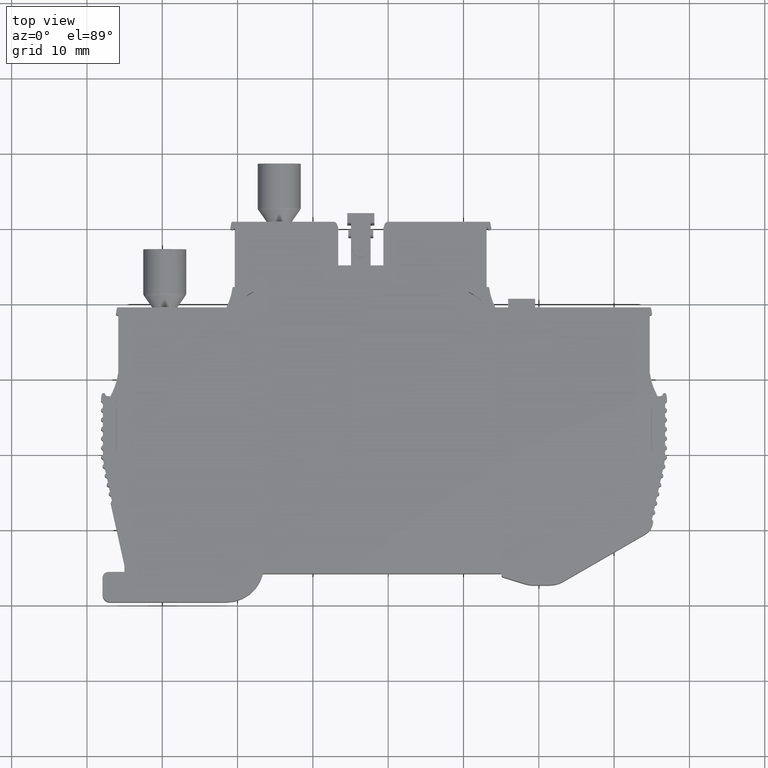
[diagram: clean part render]
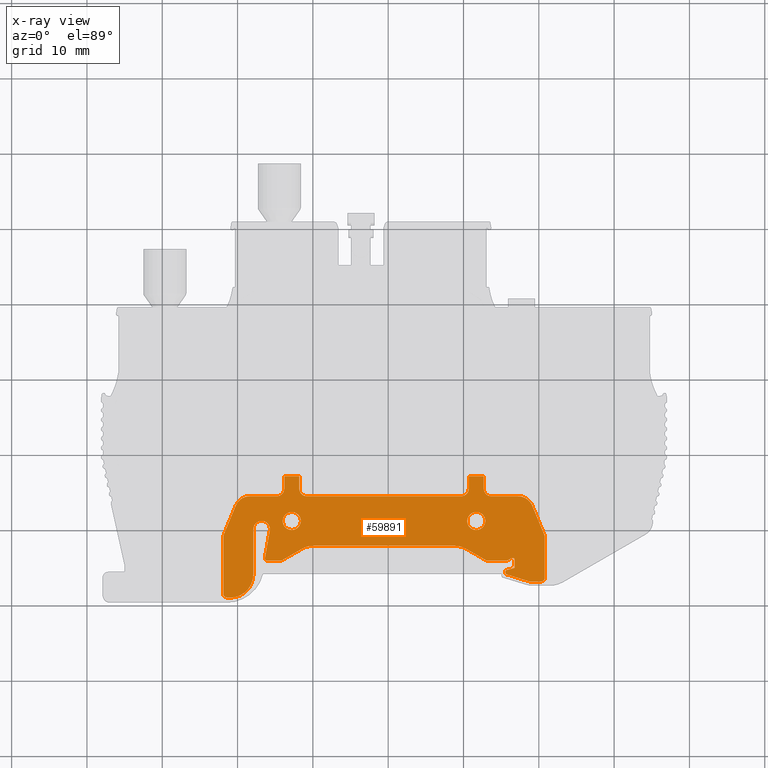
[diagram: x-ray — body ghosted, one internal face saturated and labeled with its STEP entity id]
A machine part, top view, then the same camera in x-ray: the body is ghosted and one INTERNAL B-rep face — a face not visible from any outside direction — is saturated and labeled: STEP entity #59891.
In plain terms, the highlighted planar face has unit normal (-0, 0, -1).
Its self-contained STEP definition (entity closure, byte-faithful):
#709 = ORIENTED_EDGE ( 'NONE', *, *, #13709, .F. ) ;
#711 = ORIENTED_EDGE ( 'NONE', *, *, #13625, .F. ) ;
#712 = ORIENTED_EDGE ( 'NONE', *, *, #13650, .F. ) ;
#713 = ORIENTED_EDGE ( 'NONE', *, *, #13680, .F. ) ;
#714 = ORIENTED_EDGE ( 'NONE', *, *, #13676, .F. ) ;
#715 = ORIENTED_EDGE ( 'NONE', *, *, #13633, .F. ) ;
#725 = ORIENTED_EDGE ( 'NONE', *, *, #13639, .F. ) ;
#726 = ORIENTED_EDGE ( 'NONE', *, *, #13699, .F. ) ;
#727 = ORIENTED_EDGE ( 'NONE', *, *, #13651, .F. ) ;
#729 = ORIENTED_EDGE ( 'NONE', *, *, #61433, .F. ) ;
#730 = ORIENTED_EDGE ( 'NONE', *, *, #13751, .T. ) ;
#731 = ORIENTED_EDGE ( 'NONE', *, *, #13652, .F. ) ;
#732 = ORIENTED_EDGE ( 'NONE', *, *, #13706, .F. ) ;
#733 = ORIENTED_EDGE ( 'NONE', *, *, #61579, .F. ) ;
#734 = ORIENTED_EDGE ( 'NONE', *, *, #13648, .F. ) ;
#735 = ORIENTED_EDGE ( 'NONE', *, *, #61650, .F. ) ;
#736 = ORIENTED_EDGE ( 'NONE', *, *, #13679, .F. ) ;
#737 = ORIENTED_EDGE ( 'NONE', *, *, #13711, .F. ) ;
#738 = ORIENTED_EDGE ( 'NONE', *, *, #13721, .F. ) ;
#739 = ORIENTED_EDGE ( 'NONE', *, *, #13623, .F. ) ;
#740 = ORIENTED_EDGE ( 'NONE', *, *, #13635, .F. ) ;
#741 = ORIENTED_EDGE ( 'NONE', *, *, #13747, .T. ) ;
#743 = ORIENTED_EDGE ( 'NONE', *, *, #13705, .F. ) ;
#745 = ORIENTED_EDGE ( 'NONE', *, *, #13720, .F. ) ;
#748 = ORIENTED_EDGE ( 'NONE', *, *, #13640, .F. ) ;
#752 = ORIENTED_EDGE ( 'NONE', *, *, #61642, .F. ) ;
#753 = ORIENTED_EDGE ( 'NONE', *, *, #61663, .F. ) ;
#755 = ORIENTED_EDGE ( 'NONE', *, *, #13628, .F. ) ;
#756 = ORIENTED_EDGE ( 'NONE', *, *, #13714, .T. ) ;
#757 = ORIENTED_EDGE ( 'NONE', *, *, #13735, .F. ) ;
#758 = ORIENTED_EDGE ( 'NONE', *, *, #61355, .T. ) ;
#759 = ORIENTED_EDGE ( 'NONE', *, *, #13767, .F. ) ;
#760 = ORIENTED_EDGE ( 'NONE', *, *, #13731, .F. ) ;
#761 = ORIENTED_EDGE ( 'NONE', *, *, #13669, .F. ) ;
#762 = ORIENTED_EDGE ( 'NONE', *, *, #13657, .F. ) ;
#765 = ORIENTED_EDGE ( 'NONE', *, *, #61623, .F. ) ;
#766 = ORIENTED_EDGE ( 'NONE', *, *, #13671, .F. ) ;
#768 = ORIENTED_EDGE ( 'NONE', *, *, #13618, .F. ) ;
#769 = ORIENTED_EDGE ( 'NONE', *, *, #13624, .F. ) ;
#789 = ORIENTED_EDGE ( 'NONE', *, *, #61597, .F. ) ;
#790 = ORIENTED_EDGE ( 'NONE', *, *, #61621, .F. ) ;
#794 = ORIENTED_EDGE ( 'NONE', *, *, #61386, .T. ) ;
#796 = ORIENTED_EDGE ( 'NONE', *, *, #13718, .F. ) ;
#803 = ORIENTED_EDGE ( 'NONE', *, *, #61639, .F. ) ;
#805 = ORIENTED_EDGE ( 'NONE', *, *, #61646, .F. ) ;
#808 = ORIENTED_EDGE ( 'NONE', *, *, #13673, .F. ) ;
#810 = ORIENTED_EDGE ( 'NONE', *, *, #13704, .F. ) ;
#811 = ORIENTED_EDGE ( 'NONE', *, *, #13707, .F. ) ;
#812 = ORIENTED_EDGE ( 'NONE', *, *, #13683, .F. ) ;
#824 = ORIENTED_EDGE ( 'NONE', *, *, #61589, .F. ) ;
#825 = ORIENTED_EDGE ( 'NONE', *, *, #61658, .F. ) ;
#827 = ORIENTED_EDGE ( 'NONE', *, *, #61653, .F. ) ;
#832 = ORIENTED_EDGE ( 'NONE', *, *, #13617, .F. ) ;
#4067 = EDGE_LOOP ( 'NONE', ( #765, #759, #789, #803, #753, #760, #757, #737, #738, #743, #811, #726, #745, #729, #709, #810, #732, #769, #768, #766, #748, #711, #755, #740, #731, #727, #739, #725, #714, #762, #712, #713, #832, #761, #734, #808, #736, #715, #733, #824, #735, #752, #805, #790, #827, #825, #796, #812, #756 ) ) ;
#4073 = EDGE_LOOP ( 'NONE', ( #758, #730 ) ) ;
#4093 = EDGE_LOOP ( 'NONE', ( #794, #741 ) ) ;
#8839 = VERTEX_POINT ( 'NONE', #49124 ) ;
#8887 = VERTEX_POINT ( 'NONE', #49132 ) ;
#8899 = VERTEX_POINT ( 'NONE', #49105 ) ;
#8907 = VERTEX_POINT ( 'NONE', #49134 ) ;
#8957 = VERTEX_POINT ( 'NONE', #49181 ) ;
#9041 = VERTEX_POINT ( 'NONE', #49153 ) ;
#9079 = VERTEX_POINT ( 'NONE', #49252 ) ;
#9107 = VERTEX_POINT ( 'NONE', #49241 ) ;
#9113 = VERTEX_POINT ( 'NONE', #49225 ) ;
#9115 = VERTEX_POINT ( 'NONE', #49268 ) ;
#9166 = VERTEX_POINT ( 'NONE', #49249 ) ;
#9212 = VERTEX_POINT ( 'NONE', #49284 ) ;
#9220 = VERTEX_POINT ( 'NONE', #49288 ) ;
#9222 = VERTEX_POINT ( 'NONE', #49291 ) ;
#9224 = VERTEX_POINT ( 'NONE', #49326 ) ;
#9250 = VERTEX_POINT ( 'NONE', #49304 ) ;
#9262 = VERTEX_POINT ( 'NONE', #49297 ) ;
#9268 = VERTEX_POINT ( 'NONE', #49328 ) ;
#9272 = VERTEX_POINT ( 'NONE', #49309 ) ;
#9277 = VERTEX_POINT ( 'NONE', #49311 ) ;
#9279 = VERTEX_POINT ( 'NONE', #49317 ) ;
#9286 = VERTEX_POINT ( 'NONE', #49306 ) ;
#9291 = VERTEX_POINT ( 'NONE', #49320 ) ;
#9293 = VERTEX_POINT ( 'NONE', #49300 ) ;
#9297 = VERTEX_POINT ( 'NONE', #49312 ) ;
#9299 = VERTEX_POINT ( 'NONE', #49313 ) ;
#9302 = VERTEX_POINT ( 'NONE', #49314 ) ;
#9304 = VERTEX_POINT ( 'NONE', #49276 ) ;
#9306 = VERTEX_POINT ( 'NONE', #49325 ) ;
#9312 = VERTEX_POINT ( 'NONE', #49324 ) ;
#9314 = VERTEX_POINT ( 'NONE', #49277 ) ;
#9316 = VERTEX_POINT ( 'NONE', #49281 ) ;
#9318 = VERTEX_POINT ( 'NONE', #49389 ) ;
#9320 = VERTEX_POINT ( 'NONE', #49398 ) ;
#9322 = VERTEX_POINT ( 'NONE', #49371 ) ;
#9324 = VERTEX_POINT ( 'NONE', #49342 ) ;
#9326 = VERTEX_POINT ( 'NONE', #49372 ) ;
#9334 = VERTEX_POINT ( 'NONE', #49393 ) ;
#9336 = VERTEX_POINT ( 'NONE', #49385 ) ;
#9354 = VERTEX_POINT ( 'NONE', #49351 ) ;
#9358 = VERTEX_POINT ( 'NONE', #49395 ) ;
#9370 = VERTEX_POINT ( 'NONE', #49364 ) ;
#9372 = VERTEX_POINT ( 'NONE', #49346 ) ;
#9388 = VERTEX_POINT ( 'NONE', #49347 ) ;
#9394 = VERTEX_POINT ( 'NONE', #49388 ) ;
#9396 = VERTEX_POINT ( 'NONE', #49381 ) ;
#9400 = VERTEX_POINT ( 'NONE', #49390 ) ;
#9420 = VERTEX_POINT ( 'NONE', #49338 ) ;
#9430 = VERTEX_POINT ( 'NONE', #49380 ) ;
#9438 = VERTEX_POINT ( 'NONE', #49382 ) ;
#9446 = VERTEX_POINT ( 'NONE', #49435 ) ;
#9454 = VERTEX_POINT ( 'NONE', #49436 ) ;
#9460 = VERTEX_POINT ( 'NONE', #49418 ) ;
#13617 = EDGE_CURVE ( 'NONE', #9279, #9212, #50139, .T. ) ;
#13618 = EDGE_CURVE ( 'NONE', #9396, #9438, #46110, .T. ) ;
#13623 = EDGE_CURVE ( 'NONE', #9107, #9262, #46084, .T. ) ;
#13624 = EDGE_CURVE ( 'NONE', #9438, #9394, #50111, .T. ) ;
#13625 = EDGE_CURVE ( 'NONE', #9372, #9358, #50102, .T. ) ;
#13628 = EDGE_CURVE ( 'NONE', #9314, #9372, #46085, .T. ) ;
#13633 = EDGE_CURVE ( 'NONE', #9291, #9299, #46133, .T. ) ;
#13635 = EDGE_CURVE ( 'NONE', #9312, #9314, #50157, .T. ) ;
#13639 = EDGE_CURVE ( 'NONE', #9306, #9107, #50162, .T. ) ;
#13640 = EDGE_CURVE ( 'NONE', #9358, #9224, #46197, .T. ) ;
#13648 = EDGE_CURVE ( 'NONE', #9286, #9222, #50199, .T. ) ;
#13650 = EDGE_CURVE ( 'NONE', #9304, #9115, #46184, .T. ) ;
#13651 = EDGE_CURVE ( 'NONE', #9262, #9322, #50224, .T. ) ;
#13652 = EDGE_CURVE ( 'NONE', #9322, #9312, #46192, .T. ) ;
#13657 = EDGE_CURVE ( 'NONE', #9115, #9113, #50217, .T. ) ;
#13669 = EDGE_CURVE ( 'NONE', #9222, #9279, #46175, .T. ) ;
#13671 = EDGE_CURVE ( 'NONE', #9224, #9396, #50269, .T. ) ;
#13673 = EDGE_CURVE ( 'NONE', #9316, #9286, #46187, .T. ) ;
#13676 = EDGE_CURVE ( 'NONE', #9113, #9306, #46185, .T. ) ;
#13679 = EDGE_CURVE ( 'NONE', #9299, #9316, #50324, .T. ) ;
#13680 = EDGE_CURVE ( 'NONE', #9212, #9304, #50321, .T. ) ;
#13683 = EDGE_CURVE ( 'NONE', #9336, #9354, #50289, .T. ) ;
#13699 = EDGE_CURVE ( 'NONE', #9430, #9400, #50345, .T. ) ;
#13704 = EDGE_CURVE ( 'NONE', #9460, #9388, #50375, .T. ) ;
#13705 = EDGE_CURVE ( 'NONE', #9454, #9277, #50391, .T. ) ;
#13706 = EDGE_CURVE ( 'NONE', #9394, #9460, #46272, .T. ) ;
#13707 = EDGE_CURVE ( 'NONE', #9400, #9454, #46250, .T. ) ;
#13709 = EDGE_CURVE ( 'NONE', #9388, #8907, #46265, .T. ) ;
#13711 = EDGE_CURVE ( 'NONE', #9370, #9420, #50394, .T. ) ;
#13714 = EDGE_CURVE ( 'NONE', #9336, #9220, #50408, .T. ) ;
#13718 = EDGE_CURVE ( 'NONE', #9354, #9293, #50453, .T. ) ;
#13720 = EDGE_CURVE ( 'NONE', #9079, #9430, #46226, .T. ) ;
#13721 = EDGE_CURVE ( 'NONE', #9277, #9370, #46233, .T. ) ;
#13731 = EDGE_CURVE ( 'NONE', #9446, #9166, #50494, .T. ) ;
#13735 = EDGE_CURVE ( 'NONE', #9420, #9446, #46219, .T. ) ;
#13747 = EDGE_CURVE ( 'NONE', #8957, #8899, #46317, .T. ) ;
#13751 = EDGE_CURVE ( 'NONE', #8839, #8887, #46334, .T. ) ;
#13767 = EDGE_CURVE ( 'NONE', #9324, #9250, #50548, .T. ) ;
#23040 = AXIS2_PLACEMENT_3D ( 'NONE', #31542, #31549, #31562 ) ;
#31493 = FACE_BOUND ( 'NONE', #4093, .T. ) ;
#31501 = FACE_BOUND ( 'NONE', #4073, .T. ) ;
#31504 = PLANE ( 'NONE',  #23040 ) ;
#31542 = CARTESIAN_POINT ( 'NONE',  ( 1936.942966163735000, 424.5003324329459800, 0.8750000000349100700 ) ) ;
#31549 = DIRECTION ( 'NONE',  ( -1.776356821935510000E-015, 5.619248332499656200E-012, -1.000000000000000000 ) ) ;
#31558 = FACE_OUTER_BOUND ( 'NONE', #4067, .T. ) ;
#31562 = DIRECTION ( 'NONE',  ( -3.060176890657050100E-012, -1.000000000000000000, -5.619248332499650500E-012 ) ) ;
#41388 = CARTESIAN_POINT ( 'NONE',  ( 1941.692966163739800, 420.9598604050940500, 0.8750000000150050000 ) ) ;
#41395 = DIRECTION ( 'NONE',  ( -1.776356821935510000E-015, 5.619248332499660200E-012, -1.000000000000000000 ) ) ;
#41406 = DIRECTION ( 'NONE',  ( 0.0000000000000000000, 1.000000000000000000, 5.619239159630387400E-012 ) ) ;
#41473 = DIRECTION ( 'NONE',  ( -1.776356821935510000E-015, 5.619248332499660200E-012, -1.000000000000000000 ) ) ;
#41500 = CARTESIAN_POINT ( 'NONE',  ( 1917.192966163739800, 420.9598604050940500, 0.8750000000150500700 ) ) ;
#41501 = DIRECTION ( 'NONE',  ( 0.0000000000000000000, 1.000000000000000000, 5.619239159630387400E-012 ) ) ;
#41621 = CIRCLE ( 'NONE', #41645, 1.199999999999978900 ) ;
#41632 = AXIS2_PLACEMENT_3D ( 'NONE', #41388, #41395, #41406 ) ;
#41634 = CIRCLE ( 'NONE', #41632, 1.199999999999978900 ) ;
#41645 = AXIS2_PLACEMENT_3D ( 'NONE', #41500, #41473, #41501 ) ;
#41675 = CIRCLE ( 'NONE', #41698, 3.083962780616844600 ) ;
#41698 = AXIS2_PLACEMENT_3D ( 'NONE', #42353, #42363, #42346 ) ;
#41827 = VECTOR ( 'NONE', #42784, 1000.000000000000000 ) ;
#41833 = CIRCLE ( 'NONE', #41834, 0.5000000000001114700 ) ;
#41834 = AXIS2_PLACEMENT_3D ( 'NONE', #42832, #42870, #42843 ) ;
#41843 = CIRCLE ( 'NONE', #41846, 1.000000000000000900 ) ;
#41846 = AXIS2_PLACEMENT_3D ( 'NONE', #42887, #42874, #42899 ) ;
#41892 = CIRCLE ( 'NONE', #41896, 1.000000000000000900 ) ;
#41896 = AXIS2_PLACEMENT_3D ( 'NONE', #43075, #43051, #43055 ) ;
#41898 = CIRCLE ( 'NONE', #41899, 1.000000000000000900 ) ;
#41899 = AXIS2_PLACEMENT_3D ( 'NONE', #43247, #43286, #43293 ) ;
#41907 = VECTOR ( 'NONE', #43306, 1000.000000000000000 ) ;
#41910 = CIRCLE ( 'NONE', #41918, 0.9999999999996678200 ) ;
#41917 = AXIS2_PLACEMENT_3D ( 'NONE', #42951, #42989, #42992 ) ;
#41918 = AXIS2_PLACEMENT_3D ( 'NONE', #43169, #43207, #43195 ) ;
#41925 = VECTOR ( 'NONE', #43283, 1000.000000000000000 ) ;
#41928 = VECTOR ( 'NONE', #43162, 1000.000000000000100 ) ;
#41937 = CIRCLE ( 'NONE', #41917, 1.999999999999835200 ) ;
#41939 = VECTOR ( 'NONE', #43197, 1000.000000000000000 ) ;
#41977 = VECTOR ( 'NONE', #43224, 1000.000000000000000 ) ;
#42346 = DIRECTION ( 'NONE',  ( -3.095990026788391200E-012, -1.000000000000000000, -2.961131086213806200E-012 ) ) ;
#42353 = CARTESIAN_POINT ( 'NONE',  ( 1909.009095599049900, 413.8608766244519800, 0.8750000000025900400 ) ) ;
#42363 = DIRECTION ( 'NONE',  ( -1.776356830050185100E-015, 2.961114267037270000E-012, -1.000000000000000000 ) ) ;
#42784 = DIRECTION ( 'NONE',  ( -1.000000000000000000, 2.906425021968365000E-012, 3.491481338098295200E-015 ) ) ;
#42789 = LINE ( 'NONE', #42802, #41827 ) ;
#42802 = CARTESIAN_POINT ( 'NONE',  ( 1948.848794024970200, 412.9233260166219600, 0.8750000000000000000 ) ) ;
#42832 = CARTESIAN_POINT ( 'NONE',  ( 1950.292969024719900, 413.4233260166179800, 0.8750000000015549800 ) ) ;
#42843 = DIRECTION ( 'NONE',  ( -3.108624468949745200E-012, -1.000000000000000000, -2.961172973491749700E-012 ) ) ;
#42870 = DIRECTION ( 'NONE',  ( -1.776356830050185100E-015, 2.961114267037270000E-012, -1.000000000000000000 ) ) ;
#42874 = DIRECTION ( 'NONE',  ( 1.776356830050185100E-015, -2.961114267037270000E-012, 1.000000000000000000 ) ) ;
#42887 = CARTESIAN_POINT ( 'NONE',  ( 1919.192966163739800, 425.2503324330000400, 0.8750000000365300000 ) ) ;
#42899 = DIRECTION ( 'NONE',  ( -3.108624468950435500E-012, -1.000000000000000000, -2.961064553275158300E-012 ) ) ;
#42951 = CARTESIAN_POINT ( 'NONE',  ( 1947.271087312830100, 422.2503324329130100, 0.8750000000273250300 ) ) ;
#42989 = DIRECTION ( 'NONE',  ( -1.776356830050185100E-015, 2.961114267037270000E-012, -1.000000000000000000 ) ) ;
#42992 = DIRECTION ( 'NONE',  ( -3.108624468950694400E-012, -1.000000000000000000, -2.961118763384029400E-012 ) ) ;
#43051 = DIRECTION ( 'NONE',  ( 1.776356830050185100E-015, -2.961114267037270000E-012, 1.000000000000000000 ) ) ;
#43055 = DIRECTION ( 'NONE',  ( -3.108624468950435500E-012, -1.000000000000000000, -2.961064553275158300E-012 ) ) ;
#43075 = CARTESIAN_POINT ( 'NONE',  ( 1939.692966163739800, 425.2503324329370000, 0.8750000000364550600 ) ) ;
#43137 = LINE ( 'NONE', #43210, #41939 ) ;
#43156 = CARTESIAN_POINT ( 'NONE',  ( 1950.716848557249900, 419.1577807634000100, 0.8750000000184300400 ) ) ;
#43162 = DIRECTION ( 'NONE',  ( 0.3826834323621278200, -0.9238795325125136500, -2.689788538315124200E-012 ) ) ;
#43164 = LINE ( 'NONE', #43166, #41907 ) ;
#43166 = CARTESIAN_POINT ( 'NONE',  ( 1950.792969024720200, 413.4233260166159900, 0.8750000000015549800 ) ) ;
#43169 = CARTESIAN_POINT ( 'NONE',  ( 1949.792969024739900, 418.7750973310379500, 0.8750000000173250300 ) ) ;
#43179 = LINE ( 'NONE', #43156, #41928 ) ;
#43195 = DIRECTION ( 'NONE',  ( -3.108624468951471100E-012, -1.000000000000000000, -2.961064553276144600E-012 ) ) ;
#43197 = DIRECTION ( 'NONE',  ( -3.052770306568789800E-012, -1.000000000000000000, -2.967515460675545000E-012 ) ) ;
#43207 = DIRECTION ( 'NONE',  ( -1.776356830050185100E-015, 2.961114267037270000E-012, -1.000000000000000000 ) ) ;
#43210 = CARTESIAN_POINT ( 'NONE',  ( 1918.192966163740000, 425.7187598363250300, 0.8750000000378650400 ) ) ;
#43224 = DIRECTION ( 'NONE',  ( 1.000000000000000000, -3.060176890657050100E-012, -6.123233966887679000E-017 ) ) ;
#43247 = CARTESIAN_POINT ( 'NONE',  ( 1943.692966163739800, 425.2503324329239800, 0.8750000000364400700 ) ) ;
#43251 = LINE ( 'NONE', #43264, #41977 ) ;
#43264 = CARTESIAN_POINT ( 'NONE',  ( 1859.263814779029900, 426.9186980629650100, 0.8750000000465100200 ) ) ;
#43272 = LINE ( 'NONE', #43281, #41925 ) ;
#43281 = CARTESIAN_POINT ( 'NONE',  ( 1947.271087312835100, 424.2503324329130100, 0.8750000000333200100 ) ) ;
#43283 = DIRECTION ( 'NONE',  ( 1.000000000000000000, -3.215317392943340200E-012, -3.491481339014940200E-015 ) ) ;
#43286 = DIRECTION ( 'NONE',  ( 1.776356830050185100E-015, -2.961114267037270000E-012, 1.000000000000000000 ) ) ;
#43293 = DIRECTION ( 'NONE',  ( -3.108624468950435500E-012, -1.000000000000000000, -2.961064553275158300E-012 ) ) ;
#43306 = DIRECTION ( 'NONE',  ( -3.101666818361324900E-012, -1.000000000000000000, -2.967515460675545000E-012 ) ) ;
#46084 = CIRCLE ( 'NONE', #46118, 0.5000000000000559600 ) ;
#46085 = CIRCLE ( 'NONE', #46120, 2.999999999999891600 ) ;
#46088 = VECTOR ( 'NONE', #50113, 999.9999999999998900 ) ;
#46102 = AXIS2_PLACEMENT_3D ( 'NONE', #50140, #50107, #50120 ) ;
#46110 = CIRCLE ( 'NONE', #46102, 0.3000000000000779800 ) ;
#46118 = AXIS2_PLACEMENT_3D ( 'NONE', #50118, #50132, #50138 ) ;
#46120 = AXIS2_PLACEMENT_3D ( 'NONE', #50170, #50146, #50147 ) ;
#46121 = VECTOR ( 'NONE', #50101, 1000.000000000000100 ) ;
#46128 = VECTOR ( 'NONE', #50174, 1000.000000000000000 ) ;
#46133 = CIRCLE ( 'NONE', #46134, 0.5000000000000559600 ) ;
#46134 = AXIS2_PLACEMENT_3D ( 'NONE', #50176, #50187, #50148 ) ;
#46142 = VECTOR ( 'NONE', #50126, 1000.000000000000100 ) ;
#46148 = AXIS2_PLACEMENT_3D ( 'NONE', #50311, #50307, #50312 ) ;
#46152 = VECTOR ( 'NONE', #50291, 1000.000000000000000 ) ;
#46163 = AXIS2_PLACEMENT_3D ( 'NONE', #50206, #50209, #50202 ) ;
#46165 = VECTOR ( 'NONE', #50153, 1000.000000000000000 ) ;
#46172 = VECTOR ( 'NONE', #50316, 1000.000000000000000 ) ;
#46175 = CIRCLE ( 'NONE', #46186, 0.2500000000000279800 ) ;
#46184 = CIRCLE ( 'NONE', #46163, 0.2999999999999114500 ) ;
#46185 = CIRCLE ( 'NONE', #46148, 0.2999999999997449200 ) ;
#46186 = AXIS2_PLACEMENT_3D ( 'NONE', #50270, #50239, #50240 ) ;
#46187 = CIRCLE ( 'NONE', #46190, 0.2500000000003055300 ) ;
#46188 = VECTOR ( 'NONE', #50253, 1000.000000000000000 ) ;
#46189 = AXIS2_PLACEMENT_3D ( 'NONE', #50211, #50196, #50228 ) ;
#46190 = AXIS2_PLACEMENT_3D ( 'NONE', #50309, #50306, #50319 ) ;
#46191 = VECTOR ( 'NONE', #50305, 1000.000000000000000 ) ;
#46192 = CIRCLE ( 'NONE', #46189, 3.000000000001279400 ) ;
#46194 = VECTOR ( 'NONE', #50317, 1000.000000000000000 ) ;
#46197 = CIRCLE ( 'NONE', #46201, 0.5000000000000559600 ) ;
#46200 = VECTOR ( 'NONE', #50212, 1000.000000000000000 ) ;
#46201 = AXIS2_PLACEMENT_3D ( 'NONE', #50165, #50166, #50177 ) ;
#46204 = VECTOR ( 'NONE', #50194, 1000.000000000000200 ) ;
#46209 = AXIS2_PLACEMENT_3D ( 'NONE', #50413, #50404, #50380 ) ;
#46210 = VECTOR ( 'NONE', #50378, 1000.000000000000100 ) ;
#46213 = AXIS2_PLACEMENT_3D ( 'NONE', #50443, #50436, #50425 ) ;
#46216 = VECTOR ( 'NONE', #50498, 1000.000000000000000 ) ;
#46219 = CIRCLE ( 'NONE', #46305, 1.000000000000000900 ) ;
#46221 = VECTOR ( 'NONE', #50403, 1000.000000000000000 ) ;
#46225 = AXIS2_PLACEMENT_3D ( 'NONE', #50422, #50441, #50448 ) ;
#46226 = CIRCLE ( 'NONE', #46225, 0.4999999999894533300 ) ;
#46233 = CIRCLE ( 'NONE', #46213, 1.999999999999724200 ) ;
#46235 = AXIS2_PLACEMENT_3D ( 'NONE', #50389, #50390, #50406 ) ;
#46237 = VECTOR ( 'NONE', #50452, 1000.000000000000000 ) ;
#46247 = VECTOR ( 'NONE', #50374, 1000.000000000000000 ) ;
#46250 = CIRCLE ( 'NONE', #46255, 1.000000000000111900 ) ;
#46255 = AXIS2_PLACEMENT_3D ( 'NONE', #50387, #50379, #50372 ) ;
#46257 = VECTOR ( 'NONE', #50434, 1000.000000000000000 ) ;
#46259 = VECTOR ( 'NONE', #50386, 1000.000000000000100 ) ;
#46265 = CIRCLE ( 'NONE', #46235, 3.083962780616844600 ) ;
#46272 = CIRCLE ( 'NONE', #46209, 1.099999999999767800 ) ;
#46281 = VECTOR ( 'NONE', #50576, 1000.000000000000000 ) ;
#46298 = AXIS2_PLACEMENT_3D ( 'NONE', #50535, #50536, #50511 ) ;
#46305 = AXIS2_PLACEMENT_3D ( 'NONE', #50484, #50495, #50485 ) ;
#46312 = AXIS2_PLACEMENT_3D ( 'NONE', #50530, #50520, #50531 ) ;
#46317 = CIRCLE ( 'NONE', #46312, 1.199999999999978900 ) ;
#46334 = CIRCLE ( 'NONE', #46298, 1.199999999999978900 ) ;
#49105 = CARTESIAN_POINT ( 'NONE',  ( 1917.192966163739800, 422.1598604050941500, 0.8750000000217930100 ) ) ;
#49124 = CARTESIAN_POINT ( 'NONE',  ( 1941.692966163739800, 419.7598604050942300, 0.8750000000082645000 ) ) ;
#49132 = CARTESIAN_POINT ( 'NONE',  ( 1941.692966163739800, 422.1598604050941500, 0.8750000000217506000 ) ) ;
#49134 = CARTESIAN_POINT ( 'NONE',  ( 1909.009095599040400, 410.7769138438351300, 0.8749999999934580100 ) ) ;
#49153 = CARTESIAN_POINT ( 'NONE',  ( 1918.192966163740000, 426.9186980627849800, 0.8750000000465250100 ) ) ;
#49181 = CARTESIAN_POINT ( 'NONE',  ( 1917.192966163739800, 419.7598604050942300, 0.8750000000083068000 ) ) ;
#49225 = CARTESIAN_POINT ( 'NONE',  ( 1945.841335990649900, 415.7249023393900400, 0.8750000000082349700 ) ) ;
#49241 = CARTESIAN_POINT ( 'NONE',  ( 1943.217251896170200, 415.6847127063820200, 0.8750000000082400800 ) ) ;
#49249 = CARTESIAN_POINT ( 'NONE',  ( 1916.192966163740000, 426.9186980627909500, 0.8750000000465301100 ) ) ;
#49252 = CARTESIAN_POINT ( 'NONE',  ( 1908.512448016935000, 410.8171671095009900, 0.8749999999937100300 ) ) ;
#49268 = CARTESIAN_POINT ( 'NONE',  ( 1946.342973780780100, 416.0145108087420500, 0.8750000000091200400 ) ) ;
#49276 = CARTESIAN_POINT ( 'NONE',  ( 1946.792969024730200, 415.7547004417570000, 0.8750000000084550100 ) ) ;
#49277 = CARTESIAN_POINT ( 'NONE',  ( 1920.044048645939900, 417.6693883773119800, 0.8750000000138750100 ) ) ;
#49281 = CARTESIAN_POINT ( 'NONE',  ( 1945.724568208800100, 413.8688798008090000, 0.8750000000026850700 ) ) ;
#49284 = CARTESIAN_POINT ( 'NONE',  ( 1946.792969024725200, 414.7347255809740400, 0.8750000000053450600 ) ) ;
#49288 = CARTESIAN_POINT ( 'NONE',  ( 1940.692966163740000, 425.2503324329340400, 0.8750000000364500700 ) ) ;
#49291 = CARTESIAN_POINT ( 'NONE',  ( 1945.548630798404900, 414.2094623273100100, 0.8750000000037950800 ) ) ;
#49297 = CARTESIAN_POINT ( 'NONE',  ( 1942.967250554975000, 415.7517007788320000, 0.8750000000084650100 ) ) ;
#49300 = CARTESIAN_POINT ( 'NONE',  ( 1942.692966163740000, 425.2503324329270500, 0.8750000000364450700 ) ) ;
#49304 = CARTESIAN_POINT ( 'NONE',  ( 1939.692966163735000, 424.2503324329370000, 0.8750000000333449900 ) ) ;
#49306 = CARTESIAN_POINT ( 'NONE',  ( 1945.548630798404900, 414.1076573810410100, 0.8750000000035699200 ) ) ;
#49309 = CARTESIAN_POINT ( 'NONE',  ( 1950.292969024719900, 412.9233260166179800, 0.8750000000000000000 ) ) ;
#49311 = CARTESIAN_POINT ( 'NONE',  ( 1909.767085949600000, 423.0156992977590000, 0.8750000000299000800 ) ) ;
#49312 = CARTESIAN_POINT ( 'NONE',  ( 1949.118846377849900, 423.0156992976370700, 0.8750000000297600800 ) ) ;
#49313 = CARTESIAN_POINT ( 'NONE',  ( 1948.700668845765000, 412.9457708561589600, 0.8750000000000000000 ) ) ;
#49314 = CARTESIAN_POINT ( 'NONE',  ( 1950.792969024735200, 418.7750973310349400, 0.8750000000173200300 ) ) ;
#49317 = CARTESIAN_POINT ( 'NONE',  ( 1945.733923466380000, 414.4509430950370200, 0.8750000000044599900 ) ) ;
#49320 = CARTESIAN_POINT ( 'NONE',  ( 1948.848794024970200, 412.9233260166219600, 0.8750000000000000000 ) ) ;
#49324 = CARTESIAN_POINT ( 'NONE',  ( 1938.841889403525100, 417.6693883772559800, 0.8750000000140300000 ) ) ;
#49325 = CARTESIAN_POINT ( 'NONE',  ( 1945.691340746700000, 415.6847127063740000, 0.8750000000082349700 ) ) ;
#49326 = CARTESIAN_POINT ( 'NONE',  ( 1915.668686153285100, 415.6847127064660300, 0.8750000000081200600 ) ) ;
#49328 = CARTESIAN_POINT ( 'NONE',  ( 1947.271087312835100, 424.2503324329130100, 0.8750000000333200100 ) ) ;
#49338 = CARTESIAN_POINT ( 'NONE',  ( 1915.192966163735000, 424.2503324330120300, 0.8750000000334349200 ) ) ;
#49342 = CARTESIAN_POINT ( 'NONE',  ( 1919.192966163735000, 424.2503324330000400, 0.8750000000334200400 ) ) ;
#49346 = CARTESIAN_POINT ( 'NONE',  ( 1918.544040598769900, 417.2674599426200100, 0.8750000000129950500 ) ) ;
#49347 = CARTESIAN_POINT ( 'NONE',  ( 1912.092966163699900, 413.8847255810810000, 0.8750000000027999800 ) ) ;
#49351 = CARTESIAN_POINT ( 'NONE',  ( 1942.692966163740000, 426.9186980627100100, 0.8750000000464349700 ) ) ;
#49364 = CARTESIAN_POINT ( 'NONE',  ( 1911.614845014625000, 424.2503324330230000, 0.8750000000334450200 ) ) ;
#49371 = CARTESIAN_POINT ( 'NONE',  ( 1940.341897450689900, 417.2674599425529900, 0.8750000000129150000 ) ) ;
#49372 = CARTESIAN_POINT ( 'NONE',  ( 1918.192966163740000, 425.2503324330030500, 0.8750000000365300000 ) ) ;
#49380 = CARTESIAN_POINT ( 'NONE',  ( 1908.092969024714900, 411.3106408851829800, 0.8749999999952650100 ) ) ;
#49381 = CARTESIAN_POINT ( 'NONE',  ( 1913.928657734135000, 415.6847127064720000, 0.8750000000081250600 ) ) ;
#49382 = CARTESIAN_POINT ( 'NONE',  ( 1913.633215408229900, 416.0368071597729900, 0.8750000000090150100 ) ) ;
#49385 = CARTESIAN_POINT ( 'NONE',  ( 1940.692966163740000, 426.9186980627159800, 0.8750000000464450700 ) ) ;
#49388 = CARTESIAN_POINT ( 'NONE',  ( 1914.276257553055100, 419.6836803848889900, 0.8750000000198899800 ) ) ;
#49389 = CARTESIAN_POINT ( 'NONE',  ( 1950.716848557249900, 419.1577807634000100, 0.8750000000184300400 ) ) ;
#49390 = CARTESIAN_POINT ( 'NONE',  ( 1908.092969024735100, 418.7751111454159600, 0.8750000000172499800 ) ) ;
#49393 = CARTESIAN_POINT ( 'NONE',  ( 1950.792969024720200, 413.4233260166159900, 0.8750000000015549800 ) ) ;
#49395 = CARTESIAN_POINT ( 'NONE',  ( 1915.918687494480100, 415.7517007789149900, 0.8750000000083400000 ) ) ;
#49398 = CARTESIAN_POINT ( 'NONE',  ( 1943.692966163735000, 424.2503324329239800, 0.8750000000333300100 ) ) ;
#49418 = CARTESIAN_POINT ( 'NONE',  ( 1912.092969024739900, 419.8746933803290100, 0.8750000000205651100 ) ) ;
#49435 = CARTESIAN_POINT ( 'NONE',  ( 1916.192966163740000, 425.2503324330090200, 0.8750000000365399900 ) ) ;
#49436 = CARTESIAN_POINT ( 'NONE',  ( 1908.169089492224900, 419.1577945777809800, 0.8750000000183599800 ) ) ;
#50100 = CARTESIAN_POINT ( 'NONE',  ( 1914.276257553055100, 419.6836803848889900, 0.8750000000198899800 ) ) ;
#50101 = DIRECTION ( 'NONE',  ( 0.1736481776697454700, 0.9848077530117116400, 2.921825943485178800E-012 ) ) ;
#50102 = LINE ( 'NONE', #50133, #46088 ) ;
#50104 = CARTESIAN_POINT ( 'NONE',  ( 1946.792969024725200, 414.7347255809740400, 0.8750000000053450600 ) ) ;
#50107 = DIRECTION ( 'NONE',  ( -1.776356830050185100E-015, 2.961114267037270000E-012, -1.000000000000000000 ) ) ;
#50111 = LINE ( 'NONE', #50100, #46121 ) ;
#50113 = DIRECTION ( 'NONE',  ( -0.8660238551023851100, -0.5000026823864079900, -1.480741984239946000E-012 ) ) ;
#50118 = CARTESIAN_POINT ( 'NONE',  ( 1943.217251896170200, 416.1847127063820200, 0.8750000000095750100 ) ) ;
#50120 = DIRECTION ( 'NONE',  ( -2.960594732332981100E-012, -1.000000000000000000, -2.960956133057142800E-012 ) ) ;
#50126 = DIRECTION ( 'NONE',  ( 0.9659230709110930800, 0.2588293280941775800, 7.647075304279441000E-013 ) ) ;
#50132 = DIRECTION ( 'NONE',  ( -1.776356830050185100E-015, 2.961114267037270000E-012, -1.000000000000000000 ) ) ;
#50133 = CARTESIAN_POINT ( 'NONE',  ( 1915.918687494480100, 415.7517007789149900, 0.8750000000083400000 ) ) ;
#50138 = DIRECTION ( 'NONE',  ( -3.108624468950090600E-012, -1.000000000000000000, -2.961172973492078500E-012 ) ) ;
#50139 = LINE ( 'NONE', #50104, #46142 ) ;
#50140 = CARTESIAN_POINT ( 'NONE',  ( 1913.928657734135000, 415.9847127064719500, 0.8750000000090100100 ) ) ;
#50146 = DIRECTION ( 'NONE',  ( 1.776356830050185100E-015, -2.961114267037270000E-012, 1.000000000000000000 ) ) ;
#50147 = DIRECTION ( 'NONE',  ( -3.034609600642204300E-012, -1.000000000000000000, -2.961100693347684200E-012 ) ) ;
#50148 = DIRECTION ( 'NONE',  ( -3.108624468950090600E-012, -1.000000000000000000, -2.961172973492078500E-012 ) ) ;
#50153 = DIRECTION ( 'NONE',  ( -1.000000000000000000, 3.015302874738534900E-012, 3.491481338421395300E-015 ) ) ;
#50157 = LINE ( 'NONE', #50161, #46128 ) ;
#50161 = CARTESIAN_POINT ( 'NONE',  ( 1920.044048645939900, 417.6693883773119800, 0.8750000000138750100 ) ) ;
#50162 = LINE ( 'NONE', #50163, #46165 ) ;
#50163 = CARTESIAN_POINT ( 'NONE',  ( 1943.217251896170200, 415.6847127063820200, 0.8750000000082400800 ) ) ;
#50165 = CARTESIAN_POINT ( 'NONE',  ( 1915.668686153285100, 416.1847127064660300, 0.8750000000094500000 ) ) ;
#50166 = DIRECTION ( 'NONE',  ( -1.776356830050185100E-015, 2.961114267037270000E-012, -1.000000000000000000 ) ) ;
#50170 = CARTESIAN_POINT ( 'NONE',  ( 1920.044048645929900, 414.6693883773120300, 0.8750000000052150500 ) ) ;
#50174 = DIRECTION ( 'NONE',  ( -1.000000000000000000, 3.012927930994425000E-012, -8.320758577248530700E-015 ) ) ;
#50176 = CARTESIAN_POINT ( 'NONE',  ( 1948.848794024970200, 413.4233260166219600, 0.8750000000015599700 ) ) ;
#50177 = DIRECTION ( 'NONE',  ( -3.108624468950090600E-012, -1.000000000000000000, -2.961172973492078500E-012 ) ) ;
#50187 = DIRECTION ( 'NONE',  ( -1.776356830050185100E-015, 2.961114267037270000E-012, -1.000000000000000000 ) ) ;
#50194 = DIRECTION ( 'NONE',  ( -0.8660238550993066800, 0.5000026823917397300, 1.486789396497695300E-012 ) ) ;
#50196 = DIRECTION ( 'NONE',  ( 1.776356830050185100E-015, -2.961114267037270000E-012, 1.000000000000000000 ) ) ;
#50199 = LINE ( 'NONE', #50204, #46200 ) ;
#50202 = DIRECTION ( 'NONE',  ( -2.960594732334624500E-012, -1.000000000000000000, -2.960956133058786600E-012 ) ) ;
#50204 = CARTESIAN_POINT ( 'NONE',  ( 1945.548630798404900, 414.2094623273100100, 0.8750000000037950800 ) ) ;
#50206 = CARTESIAN_POINT ( 'NONE',  ( 1946.492969024730000, 415.7547004417580200, 0.8750000000084550100 ) ) ;
#50209 = DIRECTION ( 'NONE',  ( 1.776356830050185100E-015, -2.961114267037270000E-012, 1.000000000000000000 ) ) ;
#50211 = CARTESIAN_POINT ( 'NONE',  ( 1938.841889403515100, 414.6693883772550200, 0.8750000000051499900 ) ) ;
#50212 = DIRECTION ( 'NONE',  ( 5.241255640397440100E-012, 1.000000000000000000, 2.967515460675540100E-012 ) ) ;
#50217 = LINE ( 'NONE', #50230, #46188 ) ;
#50220 = CARTESIAN_POINT ( 'NONE',  ( 1940.341897450689900, 417.2674599425529900, 0.8750000000129150000 ) ) ;
#50224 = LINE ( 'NONE', #50220, #46204 ) ;
#50228 = DIRECTION ( 'NONE',  ( -3.034609600640800300E-012, -1.000000000000000000, -2.961100693346314600E-012 ) ) ;
#50230 = CARTESIAN_POINT ( 'NONE',  ( 1945.841335990649900, 415.7249023393900400, 0.8750000000082349700 ) ) ;
#50239 = DIRECTION ( 'NONE',  ( -1.776356830050185100E-015, 2.961114267037270000E-012, -1.000000000000000000 ) ) ;
#50240 = DIRECTION ( 'NONE',  ( -2.664535259100077600E-012, -1.000000000000000000, -2.961172973492078500E-012 ) ) ;
#50253 = DIRECTION ( 'NONE',  ( -0.8660345566149692000, -0.4999841464973801600, -1.480686941338548300E-012 ) ) ;
#50269 = LINE ( 'NONE', #50296, #46191 ) ;
#50270 = CARTESIAN_POINT ( 'NONE',  ( 1945.798630798404900, 414.2094623273089800, 0.8750000000037950800 ) ) ;
#50289 = LINE ( 'NONE', #50290, #46152 ) ;
#50290 = CARTESIAN_POINT ( 'NONE',  ( 1883.763814779029900, 426.9186980628900300, 0.8750000000464199800 ) ) ;
#50291 = DIRECTION ( 'NONE',  ( 1.000000000000000000, -3.060176890657050100E-012, -6.123233966887679000E-017 ) ) ;
#50296 = CARTESIAN_POINT ( 'NONE',  ( 1913.928657734135000, 415.6847127064720000, 0.8750000000081250600 ) ) ;
#50305 = DIRECTION ( 'NONE',  ( -1.000000000000000000, 3.123981769497315100E-012, 3.491481338743900200E-015 ) ) ;
#50306 = DIRECTION ( 'NONE',  ( -1.776356830050185100E-015, 2.961114267037270000E-012, -1.000000000000000000 ) ) ;
#50307 = DIRECTION ( 'NONE',  ( -1.776356830050185100E-015, 2.961114267037270000E-012, -1.000000000000000000 ) ) ;
#50309 = CARTESIAN_POINT ( 'NONE',  ( 1945.798630798404900, 414.1076573810410100, 0.8750000000035699200 ) ) ;
#50311 = CARTESIAN_POINT ( 'NONE',  ( 1945.691340746700000, 415.9847127063740100, 0.8750000000091200400 ) ) ;
#50312 = DIRECTION ( 'NONE',  ( -2.960594732336268000E-012, -1.000000000000000000, -2.960956133060430100E-012 ) ) ;
#50316 = DIRECTION ( 'NONE',  ( 3.713265354292279500E-012, 1.000000000000000000, 2.967515460675545000E-012 ) ) ;
#50317 = DIRECTION ( 'NONE',  ( -0.9551103209262932200, 0.2962503584134090200, 8.824622686755682400E-013 ) ) ;
#50318 = CARTESIAN_POINT ( 'NONE',  ( 1946.792969024730200, 415.7547004417570000, 0.8750000000084550100 ) ) ;
#50319 = DIRECTION ( 'NONE',  ( -2.664535259097119500E-012, -1.000000000000000000, -2.961172973488790800E-012 ) ) ;
#50321 = LINE ( 'NONE', #50318, #46172 ) ;
#50324 = LINE ( 'NONE', #50325, #46194 ) ;
#50325 = CARTESIAN_POINT ( 'NONE',  ( 1945.724568208800100, 413.8688798008090000, 0.8750000000026850700 ) ) ;
#50345 = LINE ( 'NONE', #50364, #46247 ) ;
#50364 = CARTESIAN_POINT ( 'NONE',  ( 1908.092969024735100, 418.7751111454159600, 0.8750000000172499800 ) ) ;
#50371 = CARTESIAN_POINT ( 'NONE',  ( 1912.092966163699900, 413.8847255810810000, 0.8750000000027999800 ) ) ;
#50372 = DIRECTION ( 'NONE',  ( -3.108624468950090600E-012, -1.000000000000000000, -2.961064553274830000E-012 ) ) ;
#50374 = DIRECTION ( 'NONE',  ( 3.119670624889734700E-012, 1.000000000000000000, 2.937768593559204900E-012 ) ) ;
#50375 = LINE ( 'NONE', #50371, #46210 ) ;
#50378 = DIRECTION ( 'NONE',  ( -4.776389567471609400E-007, -0.9999999999998858700, -2.967515459007549800E-012 ) ) ;
#50379 = DIRECTION ( 'NONE',  ( -1.776356830050185100E-015, 2.961114267037270000E-012, -1.000000000000000000 ) ) ;
#50380 = DIRECTION ( 'NONE',  ( -3.027880976251065800E-012, -1.000000000000000000, -2.961153260726262300E-012 ) ) ;
#50386 = DIRECTION ( 'NONE',  ( 0.3826834323680105000, 0.9238795325100768200, 2.740290664466149600E-012 ) ) ;
#50387 = CARTESIAN_POINT ( 'NONE',  ( 1909.092969024740100, 418.7751111454130100, 0.8750000000172449800 ) ) ;
#50389 = CARTESIAN_POINT ( 'NONE',  ( 1909.009095599049900, 413.8608766244519800, 0.8750000000025900400 ) ) ;
#50390 = DIRECTION ( 'NONE',  ( -1.776356830050185100E-015, 2.961114267037270000E-012, -1.000000000000000000 ) ) ;
#50391 = LINE ( 'NONE', #50392, #46259 ) ;
#50392 = CARTESIAN_POINT ( 'NONE',  ( 1909.767085949600000, 423.0156992977590000, 0.8750000000299000800 ) ) ;
#50394 = LINE ( 'NONE', #50402, #46221 ) ;
#50402 = CARTESIAN_POINT ( 'NONE',  ( 1915.192966163735000, 424.2503324330120300, 0.8750000000334349200 ) ) ;
#50403 = DIRECTION ( 'NONE',  ( 1.000000000000000000, -3.029148790199865000E-012, -3.491481338462480400E-015 ) ) ;
#50404 = DIRECTION ( 'NONE',  ( 1.776356830050185100E-015, -2.961114267037270000E-012, 1.000000000000000000 ) ) ;
#50406 = DIRECTION ( 'NONE',  ( -3.095990026788391200E-012, -1.000000000000000000, -2.961131086213806200E-012 ) ) ;
#50408 = LINE ( 'NONE', #50412, #46237 ) ;
#50412 = CARTESIAN_POINT ( 'NONE',  ( 1940.692966163625000, 389.1228174006695300, 0.8749999999292049600 ) ) ;
#50413 = CARTESIAN_POINT ( 'NONE',  ( 1913.192969024740000, 419.8746933803259900, 0.8750000000205601100 ) ) ;
#50422 = CARTESIAN_POINT ( 'NONE',  ( 1908.592969024705100, 411.3106408851940000, 0.8749999999952650100 ) ) ;
#50424 = CARTESIAN_POINT ( 'NONE',  ( 1942.692966163625000, 389.1228174006635100, 0.8749999999291949700 ) ) ;
#50425 = DIRECTION ( 'NONE',  ( -3.108624468950866800E-012, -1.000000000000000000, -2.961118763384193800E-012 ) ) ;
#50434 = DIRECTION ( 'NONE',  ( -3.060176890657050100E-012, -1.000000000000000000, -2.961114267037264700E-012 ) ) ;
#50436 = DIRECTION ( 'NONE',  ( -1.776356830050185100E-015, 2.961114267037270000E-012, -1.000000000000000000 ) ) ;
#50441 = DIRECTION ( 'NONE',  ( -1.776356830050185100E-015, 2.961114267037270000E-012, -1.000000000000000000 ) ) ;
#50443 = CARTESIAN_POINT ( 'NONE',  ( 1911.614845014620000, 422.2503324330230000, 0.8750000000274500400 ) ) ;
#50448 = DIRECTION ( 'NONE',  ( -3.108624469016009700E-012, -1.000000000000000000, -2.961172973554870700E-012 ) ) ;
#50452 = DIRECTION ( 'NONE',  ( -3.060176890657050100E-012, -1.000000000000000000, -2.961114267037264700E-012 ) ) ;
#50453 = LINE ( 'NONE', #50424, #46257 ) ;
#50484 = CARTESIAN_POINT ( 'NONE',  ( 1915.192966163739800, 425.2503324330120300, 0.8750000000365399900 ) ) ;
#50485 = DIRECTION ( 'NONE',  ( 3.108624468950435500E-012, 1.000000000000000000, 2.961064553275158300E-012 ) ) ;
#50487 = CARTESIAN_POINT ( 'NONE',  ( 1916.192966163740000, 425.7187598363320300, 0.8750000000378700400 ) ) ;
#50494 = LINE ( 'NONE', #50487, #46216 ) ;
#50495 = DIRECTION ( 'NONE',  ( 1.776356830050185100E-015, -2.961114267037270000E-012, 1.000000000000000000 ) ) ;
#50498 = DIRECTION ( 'NONE',  ( 3.060176890657050100E-012, 1.000000000000000000, 2.967515460675545000E-012 ) ) ;
#50511 = DIRECTION ( 'NONE',  ( 0.0000000000000000000, 1.000000000000000000, 5.619239159630387400E-012 ) ) ;
#50520 = DIRECTION ( 'NONE',  ( -1.776356821935510000E-015, 5.619248332499660200E-012, -1.000000000000000000 ) ) ;
#50530 = CARTESIAN_POINT ( 'NONE',  ( 1917.192966163739800, 420.9598604050940500, 0.8750000000150500700 ) ) ;
#50531 = DIRECTION ( 'NONE',  ( 0.0000000000000000000, 1.000000000000000000, 5.619239159630387400E-012 ) ) ;
#50535 = CARTESIAN_POINT ( 'NONE',  ( 1941.692966163739800, 420.9598604050940500, 0.8750000000150050000 ) ) ;
#50536 = DIRECTION ( 'NONE',  ( -1.776356821935510000E-015, 5.619248332499660200E-012, -1.000000000000000000 ) ) ;
#50548 = LINE ( 'NONE', #50567, #46281 ) ;
#50567 = CARTESIAN_POINT ( 'NONE',  ( 1939.692966163735000, 424.2503324329370000, 0.8750000000333449900 ) ) ;
#50576 = DIRECTION ( 'NONE',  ( 1.000000000000000000, -3.087255501013750000E-012, -3.491481338634915100E-015 ) ) ;
#59891 = ADVANCED_FACE ( 'NONE', ( #31501, #31493, #31558 ), #31504, .F. ) ;
#61355 = EDGE_CURVE ( 'NONE', #8887, #8839, #41634, .T. ) ;
#61386 = EDGE_CURVE ( 'NONE', #8899, #8957, #41621, .T. ) ;
#61433 = EDGE_CURVE ( 'NONE', #8907, #9079, #41675, .T. ) ;
#61579 = EDGE_CURVE ( 'NONE', #9272, #9291, #42789, .T. ) ;
#61589 = EDGE_CURVE ( 'NONE', #9334, #9272, #41833, .T. ) ;
#61597 = EDGE_CURVE ( 'NONE', #9326, #9324, #41843, .T. ) ;
#61621 = EDGE_CURVE ( 'NONE', #9268, #9297, #41937, .T. ) ;
#61623 = EDGE_CURVE ( 'NONE', #9250, #9220, #41892, .T. ) ;
#61639 = EDGE_CURVE ( 'NONE', #9041, #9326, #43137, .T. ) ;
#61642 = EDGE_CURVE ( 'NONE', #9318, #9302, #41910, .T. ) ;
#61646 = EDGE_CURVE ( 'NONE', #9297, #9318, #43179, .T. ) ;
#61650 = EDGE_CURVE ( 'NONE', #9302, #9334, #43164, .T. ) ;
#61653 = EDGE_CURVE ( 'NONE', #9320, #9268, #43272, .T. ) ;
#61658 = EDGE_CURVE ( 'NONE', #9293, #9320, #41898, .T. ) ;
#61663 = EDGE_CURVE ( 'NONE', #9166, #9041, #43251, .T. ) ;